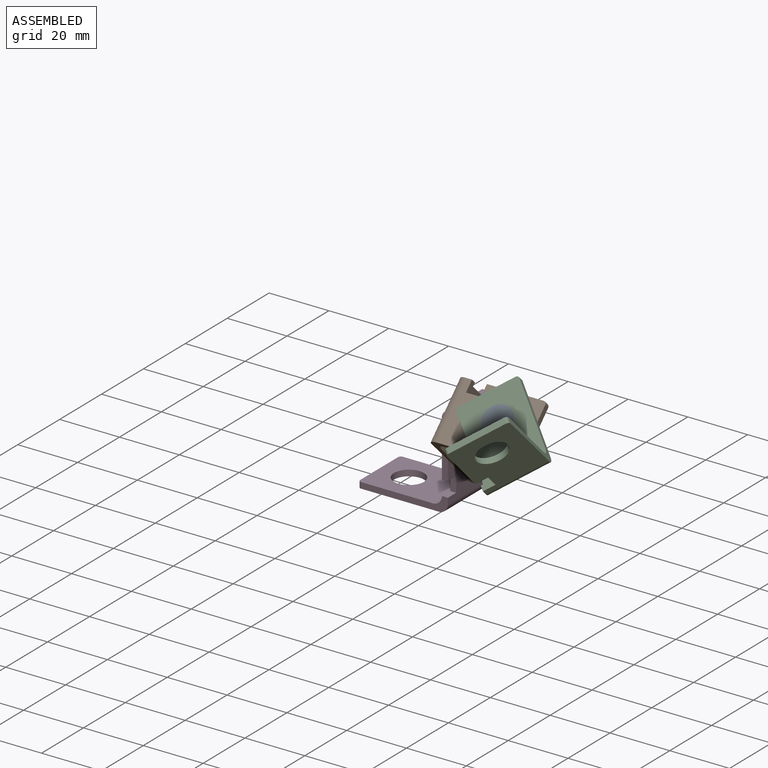
[diagram: assembled view]
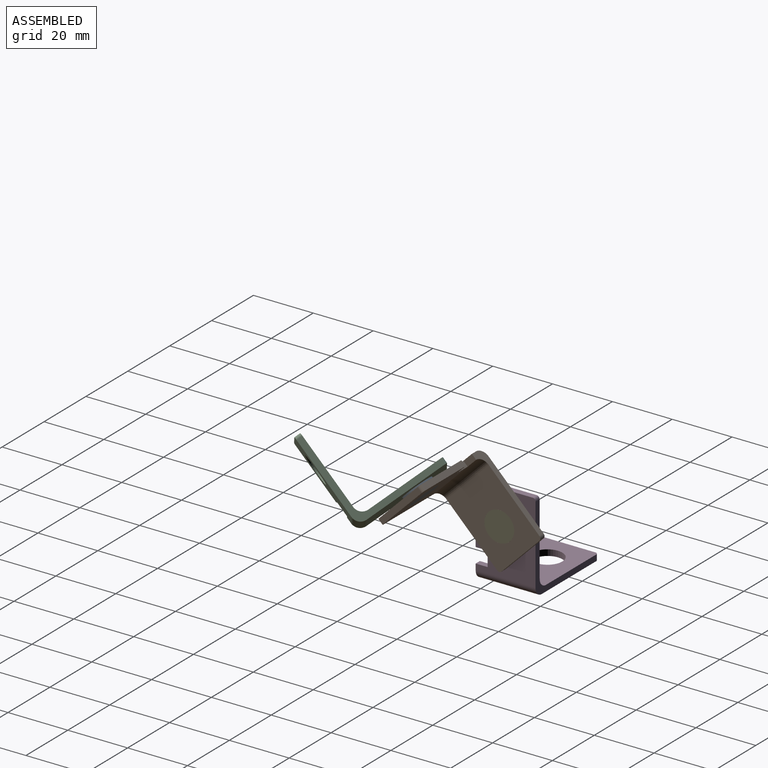
[diagram: assembled view, second angle]
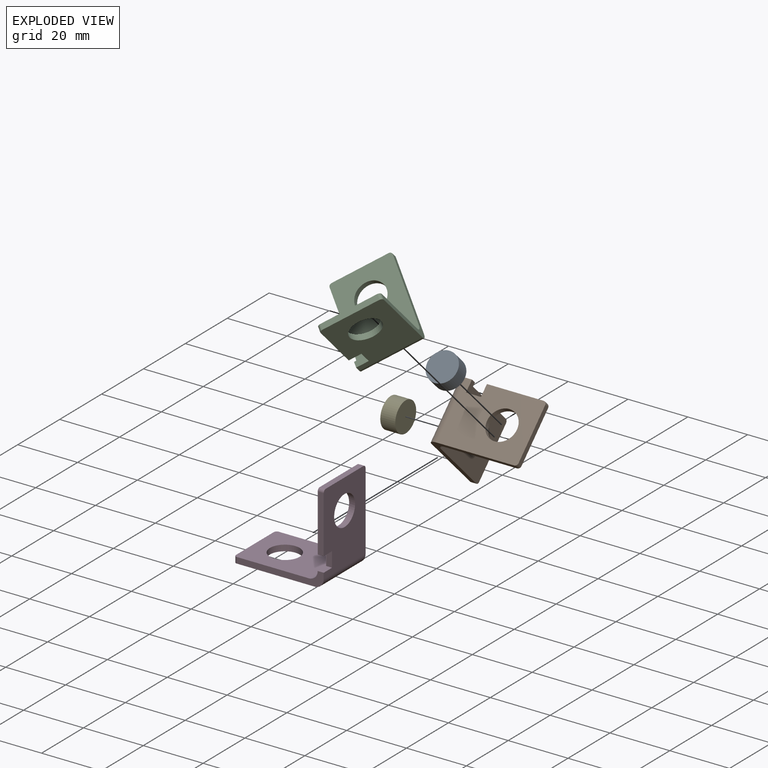
[diagram: exploded view]
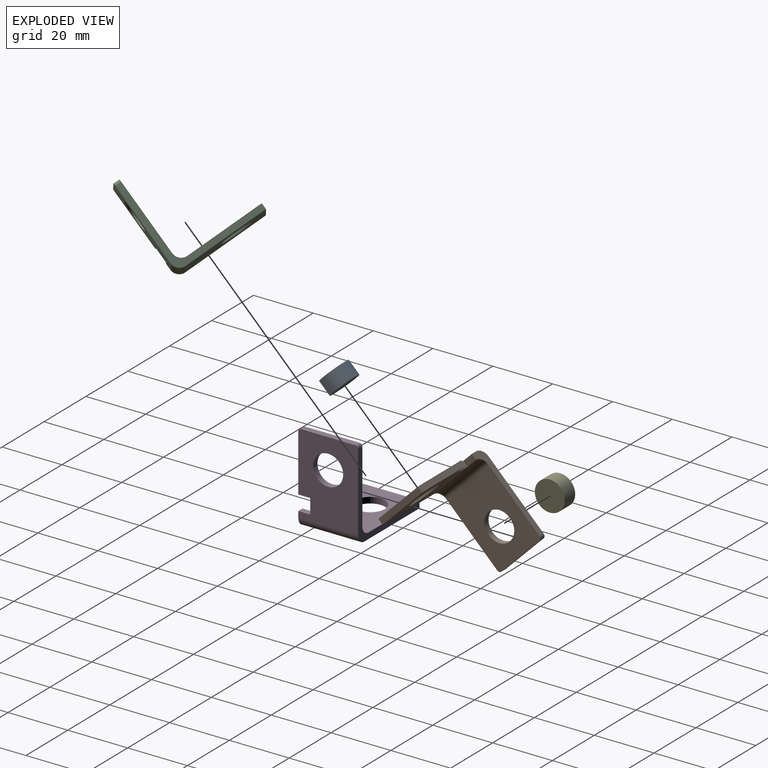
[diagram: exploded view, second angle]
ASSEMBLY  parts=5 mates=4
PART A: 3 faces, bbox 10x5x10 mm
  f0: cylinder r=5mm len=10mm, axis (0,1,0), area 157.1mm2, adj f1,f2
  f1: plane 10x10mm, normal (0,-1,0), area 78.5mm2, adj f0
  f2: plane 10x10mm, normal (0,1,0), area 78.5mm2, adj f0
PART B: 20 faces, bbox 30x20x30 mm
  f0: plane 25x20mm, normal (-1,0,0), area 401mm2, adj f3,f8,f9,f10,f12,f14,f15,f16
  f1: plane 29x5mm, normal (0,-1,0), area 64mm2, adj f2,f3,f4,f6,f7,f13,f19
  f2: plane 27x20mm, normal (1,0,0), area 441mm2, adj f1,f7,f8,f9,f10,f12,f13,f14
  f3: cylinder r=3mm len=20mm, axis (0,1,0), area 94.2mm2, adj f0,f1,f4,f10,f13
  f4: plane 25x20mm, normal (0,0,1), area 421mm2, adj f1,f3,f5,f10,f11,f17,f19
  f5: plane 18x2mm, normal (-1,0,0), area 36mm2, adj f4,f6,f17,f19
  f6: plane 27x20mm, normal (0,0,-1), area 461mm2, adj f1,f5,f7,f10,f11,f17,f19
  f7: cylinder r=3mm len=20mm, axis (0,1,0), area 94.2mm2, adj f1,f2,f6,f10
  f8: plane 18x2mm, normal (0,0,1), area 36mm2, adj f0,f2,f16,f18
  f9: plane 19x2mm, normal (0,-1,0), area 38mm2, adj f0,f2,f14,f18
  f10: plane 29x29mm, normal (0,1,0), area 112mm2, adj f0,f2,f3,f4,f6,f7,f16,f17
  f11: cylinder r=5mm len=10mm, axis (0,0,1), area 62.8mm2, adj f4,f6
  f12: plane 5x2mm, normal (0,-1,0), area 10mm2, adj f0,f2,f13,f14
  f13: plane 4x2mm, normal (0,0,1), area 8mm2, adj f1,f2,f3,f12
  f14: plane 4x2mm, normal (0,0,-1), area 8mm2, adj f0,f2,f9,f12
  f15: cylinder r=5mm len=10mm, axis (-1,0,0), area 62.8mm2, adj f0,f2
  f16: cylinder r=1mm len=2mm, axis (-1,0,0), area 3.1mm2, adj f0,f2,f8,f10
  f17: cylinder r=1mm len=2mm, axis (0,0,-1), area 3.1mm2, adj f4,f5,f6,f10
  f18: cylinder r=1mm len=2mm, axis (1,0,0), area 3.1mm2, adj f0,f2,f8,f9
  f19: cylinder r=1mm len=2mm, axis (0,0,1), area 3.1mm2, adj f1,f4,f5,f6
PART C: same geometry as B
PART D: same geometry as B
PART E: same geometry as A
PLACE A rot(axis=(-1,0,0),45deg) t=(17.76,-12.65,33.65)mm
PLACE B rot(axis=(-0.68,0.28,-0.68),148.6deg) t=(-2.24,0.08,6.78)mm
PLACE C rot(axis=(0.68,0.28,-0.68),62.8deg) t=(17.76,-4.77,45.77)mm
PLACE D t=(-33.24,10.08,0.92)mm
PLACE E rot(axis=(-0.58,-0.58,-0.58),120deg) t=(-0.24,0.08,20.92)mm
MATE fastened E.f0 <-> D.f15  axis (-1,0,0) through (-5.24,0.08,20.92)mm
MATE revolute B.f11 <-> E.f0  axis (1,0,0) through (-0.24,0.08,20.92)mm
MATE revolute C.f11 <-> A.f0  axis (0,-0.71,0.71) through (17.76,-16.18,37.18)mm
MATE fastened A.f0 <-> B.f15  axis (0,0.71,-0.71) through (17.76,-12.65,33.65)mm
